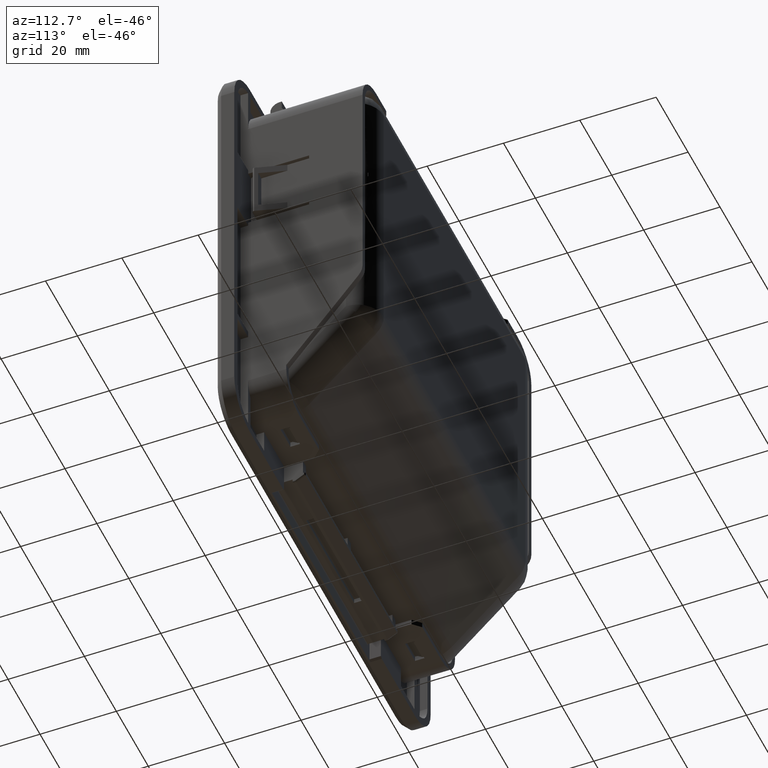
[diagram: clean part render]
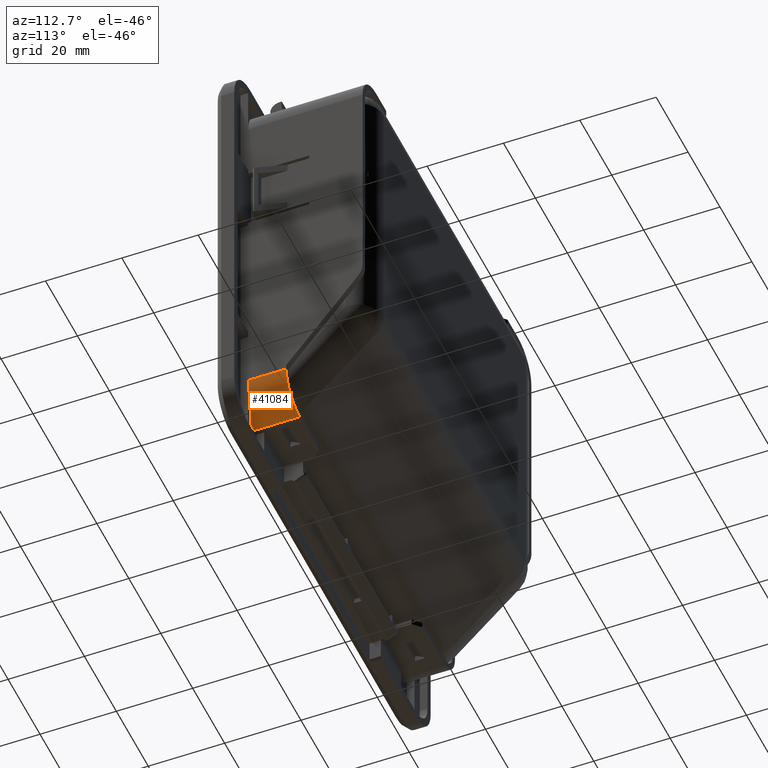
[diagram: same view with one face highlighted and labeled with its STEP entity id]
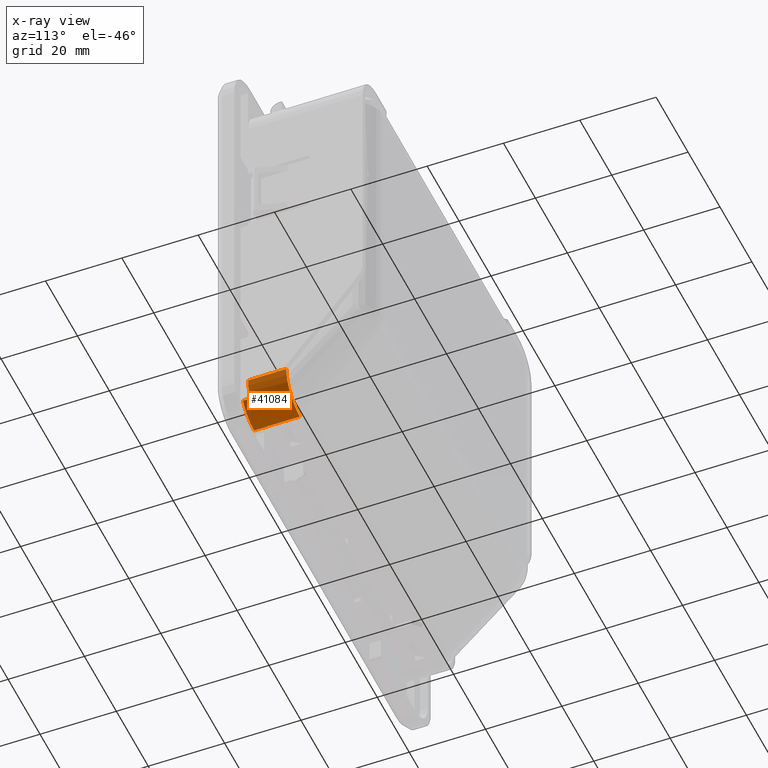
[diagram: x-ray of the same camera — body ghosted, the highlighted face saturated]
A machine part, auxiliary view. The second image highlights one B-rep face of the part: STEP entity #41084.
The next image is the same camera in x-ray: the body ghosted, the highlighted face saturated — about 0% of this face is hidden behind the body in this view.
In plain terms, the highlighted cylindrical surface (edge-blend (fillet) strip) has radius 8.5 mm, axis along (0, 1, 0).
Its self-contained STEP definition (entity closure, byte-faithful):
#411 = LINE ( 'NONE', #4799, #25236 ) ;
#1855 = DIRECTION ( 'NONE',  ( -0.0000000000000000000, -1.000000000000000000, 0.0000000000000000000 ) ) ;
#2566 = EDGE_CURVE ( 'NONE', #25430, #4446, #32502, .T. ) ;
#2989 = EDGE_CURVE ( 'NONE', #35683, #25430, #21278, .T. ) ;
#4446 = VERTEX_POINT ( 'NONE', #4492 ) ;
#4492 = CARTESIAN_POINT ( 'NONE',  ( 44.35000000000000100, 3.000000000003265800, -51.60187899870852800 ) ) ;
#4799 = CARTESIAN_POINT ( 'NONE',  ( 44.35000000000000100, 9.000000000007551300, -51.60187899870000200 ) ) ;
#4896 = ORIENTED_EDGE ( 'NONE', *, *, #40738, .F. ) ;
#6439 = CARTESIAN_POINT ( 'NONE',  ( 44.35000000000000100, 14.99999999999245000, -43.10187899869467300 ) ) ;
#7498 = CYLINDRICAL_SURFACE ( 'NONE', #17708, 8.500000000000000000 ) ;
#7873 = ORIENTED_EDGE ( 'NONE', *, *, #28852, .T. ) ;
#7981 = DIRECTION ( 'NONE',  ( 0.0000000000000000000, -1.000000000000000000, -8.881784197000000200E-013 ) ) ;
#9141 = CIRCLE ( 'NONE', #14290, 8.500000000000000000 ) ;
#9702 = DIRECTION ( 'NONE',  ( 0.0000000000000000000, -8.881784197001252300E-013, 1.000000000000000000 ) ) ;
#11585 = ORIENTED_EDGE ( 'NONE', *, *, #2566, .T. ) ;
#11643 = DIRECTION ( 'NONE',  ( 0.0000000000000000000, -1.000000000000000000, -8.881784197000000200E-013 ) ) ;
#12514 = ORIENTED_EDGE ( 'NONE', *, *, #14998, .T. ) ;
#14180 = CARTESIAN_POINT ( 'NONE',  ( 51.34999999944324100, 5.000000000002141400, -47.92370438000829600 ) ) ;
#14290 = AXIS2_PLACEMENT_3D ( 'NONE', #6439, #29092, #9702 ) ;
#14998 = EDGE_CURVE ( 'NONE', #40548, #22430, #9141, .T. ) ;
#16026 = DIRECTION ( 'NONE',  ( 0.0000000000000000000, -8.881784197001252300E-013, 1.000000000000000000 ) ) ;
#16633 = LINE ( 'NONE', #40580, #41385 ) ;
#17238 = CARTESIAN_POINT ( 'NONE',  ( 51.34999999939468300, 2.999999999997857700, -47.92370438008056500 ) ) ;
#17708 = AXIS2_PLACEMENT_3D ( 'NONE', #22361, #25656, #16026 ) ;
#18611 = DIRECTION ( 'NONE',  ( -0.0000000000000000000, 1.000000000000000000, 8.881784197000000200E-013 ) ) ;
#20236 = CARTESIAN_POINT ( 'NONE',  ( 52.85000000000000900, 5.000000000000000000, -43.10187899870178500 ) ) ;
#21278 = LINE ( 'NONE', #34272, #41484 ) ;
#22361 = CARTESIAN_POINT ( 'NONE',  ( 44.35000000000000100, 9.000000000000001800, -43.10187899870000200 ) ) ;
#22430 = VERTEX_POINT ( 'NONE', #33977 ) ;
#23624 = AXIS2_PLACEMENT_3D ( 'NONE', #27376, #7981, #30629 ) ;
#25236 = VECTOR ( 'NONE', #34125, 1000.000000000000000 ) ;
#25430 = VERTEX_POINT ( 'NONE', #17238 ) ;
#25656 = DIRECTION ( 'NONE',  ( -0.0000000000000000000, 1.000000000000000000, 8.881784197000000200E-013 ) ) ;
#27376 = CARTESIAN_POINT ( 'NONE',  ( 44.35000000000000100, 5.000000000000000000, -43.10187899870355500 ) ) ;
#28688 = AXIS2_PLACEMENT_3D ( 'NONE', #37909, #18611, #41189 ) ;
#28799 = CIRCLE ( 'NONE', #23624, 8.500000000000000000 ) ;
#28852 = EDGE_CURVE ( 'NONE', #4446, #40548, #411, .T. ) ;
#28873 = EDGE_CURVE ( 'NONE', #22430, #39432, #16633, .T. ) ;
#29092 = DIRECTION ( 'NONE',  ( 0.0000000000000000000, -1.000000000000000000, -8.881784197000000200E-013 ) ) ;
#30629 = DIRECTION ( 'NONE',  ( -1.632680918566406600E-015, -8.881784197001252300E-013, 1.000000000000000000 ) ) ;
#31923 = ORIENTED_EDGE ( 'NONE', *, *, #28873, .T. ) ;
#32502 = CIRCLE ( 'NONE', #28688, 8.500000000000000000 ) ;
#33977 = CARTESIAN_POINT ( 'NONE',  ( 52.85000000000000100, 14.99999999999622500, -43.10187899869734500 ) ) ;
#34125 = DIRECTION ( 'NONE',  ( -0.0000000000000000000, 1.000000000000000000, 8.881784197000000200E-013 ) ) ;
#34272 = CARTESIAN_POINT ( 'NONE',  ( 51.34999999938648300, 9.000000000004284600, -47.92370438008713800 ) ) ;
#35683 = VERTEX_POINT ( 'NONE', #14180 ) ;
#36135 = CARTESIAN_POINT ( 'NONE',  ( 44.35000000000000100, 15.00000000000000000, -51.60187899869787000 ) ) ;
#36347 = FACE_OUTER_BOUND ( 'NONE', #37998, .T. ) ;
#37909 = CARTESIAN_POINT ( 'NONE',  ( 44.35000000000000100, 2.999999999995716300, -43.10187899870533100 ) ) ;
#37998 = EDGE_LOOP ( 'NONE', ( #12514, #31923, #4896, #40164, #11585, #7873 ) ) ;
#39432 = VERTEX_POINT ( 'NONE', #20236 ) ;
#40164 = ORIENTED_EDGE ( 'NONE', *, *, #2989, .T. ) ;
#40548 = VERTEX_POINT ( 'NONE', #36135 ) ;
#40580 = CARTESIAN_POINT ( 'NONE',  ( 52.85000000000000100, 38.20000000000000300, -43.10187899870000900 ) ) ;
#40738 = EDGE_CURVE ( 'NONE', #35683, #39432, #28799, .T. ) ;
#41084 = ADVANCED_FACE ( 'NONE', ( #36347 ), #7498, .T. ) ;
#41189 = DIRECTION ( 'NONE',  ( 0.0000000000000000000, -8.881784197001252300E-013, 1.000000000000000000 ) ) ;
#41385 = VECTOR ( 'NONE', #1855, 1000.000000000000000 ) ;
#41484 = VECTOR ( 'NONE', #11643, 1000.000000000000000 ) ;